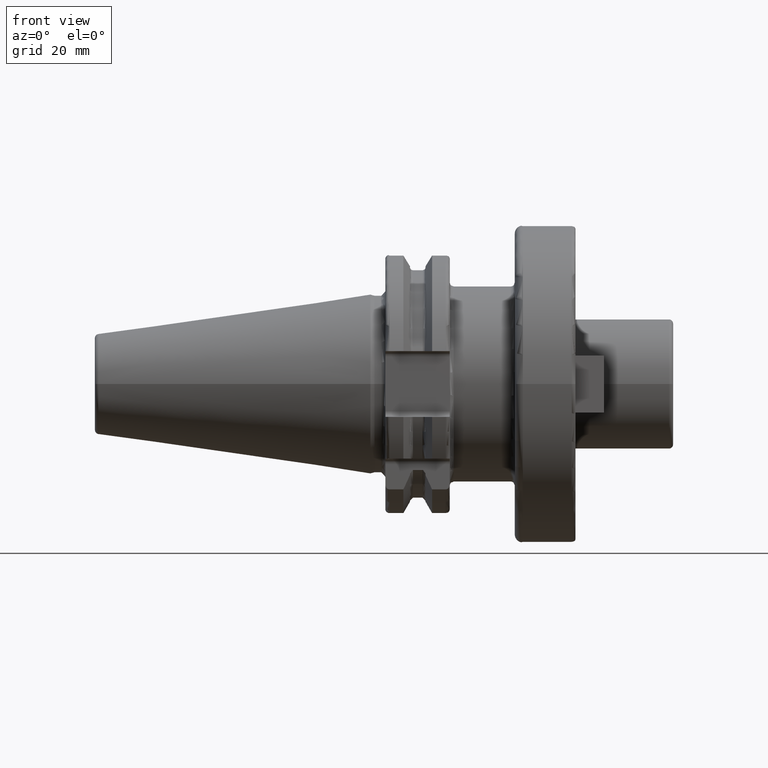
[diagram: clean part render]
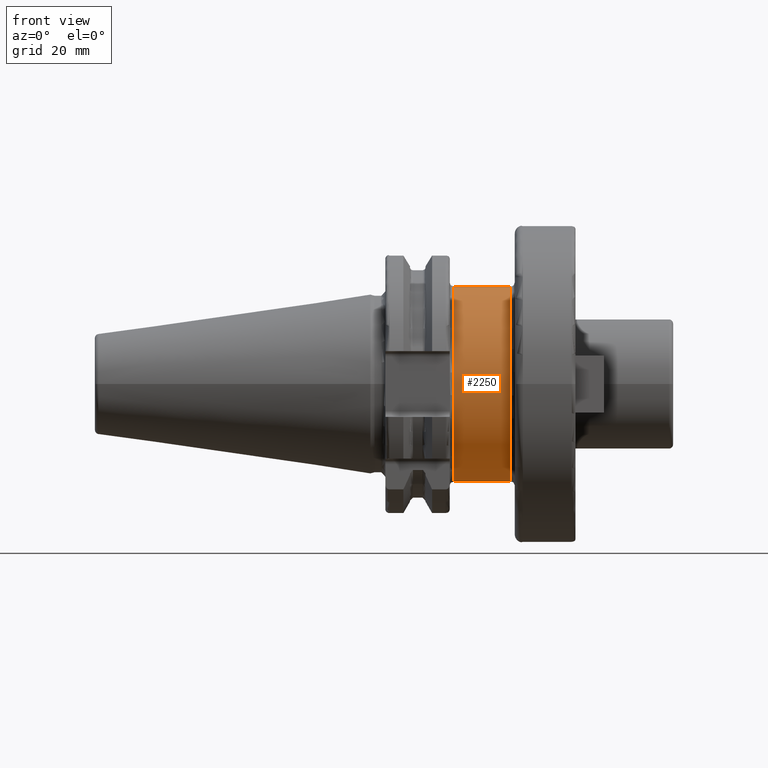
[diagram: same view with one face highlighted and labeled with its STEP entity id]
A machine part, front view. The second image highlights one B-rep face of the part: STEP entity #2250.
In plain terms, the highlighted cylindrical surface (partial cylindrical patch) has radius 24 mm, axis along (1, 0, 0).
Its self-contained STEP definition (entity closure, byte-faithful):
#299=DIRECTION('',(1.E0,0.E0,0.E0));
#300=VECTOR('',#299,1.4E1);
#301=CARTESIAN_POINT('',(2.005E1,2.255E1,-8.215686216014E0));
#302=LINE('',#301,#300);
#303=CARTESIAN_POINT('',(2.005E1,0.E0,0.E0));
#304=DIRECTION('',(-1.E0,0.E0,0.E0));
#305=DIRECTION('',(0.E0,9.395833333333E-1,-3.423202590006E-1));
#306=AXIS2_PLACEMENT_3D('',#303,#304,#305);
#308=DIRECTION('',(1.E0,0.E0,0.E0));
#309=VECTOR('',#308,1.4E1);
#310=CARTESIAN_POINT('',(2.005E1,2.255E1,8.215686216014E0));
#311=LINE('',#310,#309);
#334=CARTESIAN_POINT('',(3.405E1,0.E0,0.E0));
#335=DIRECTION('',(-1.E0,0.E0,0.E0));
#336=DIRECTION('',(0.E0,9.395833333333E-1,-3.423202590006E-1));
#337=AXIS2_PLACEMENT_3D('',#334,#335,#336);
#1836=CARTESIAN_POINT('',(2.005E1,2.255E1,8.215686216014E0));
#1837=CARTESIAN_POINT('',(3.405E1,2.255E1,8.215686216014E0));
#1838=VERTEX_POINT('',#1836);
#1839=VERTEX_POINT('',#1837);
#1840=CARTESIAN_POINT('',(2.005E1,2.255E1,-8.215686216014E0));
#1841=CARTESIAN_POINT('',(3.405E1,2.255E1,-8.215686216014E0));
#1842=VERTEX_POINT('',#1840);
#1843=VERTEX_POINT('',#1841);
#2238=CARTESIAN_POINT('',(1.63025E1,0.E0,0.E0));
#2239=DIRECTION('',(1.E0,0.E0,0.E0));
#2240=DIRECTION('',(0.E0,-1.E0,0.E0));
#2241=AXIS2_PLACEMENT_3D('',#2238,#2239,#2240);
#2242=CYLINDRICAL_SURFACE('',#2241,2.4E1);
#2244=ORIENTED_EDGE('',*,*,#2243,.F.);
#2245=ORIENTED_EDGE('',*,*,#2002,.F.);
#2246=ORIENTED_EDGE('',*,*,#2233,.T.);
#2247=ORIENTED_EDGE('',*,*,#2010,.T.);
#2248=EDGE_LOOP('',(#2244,#2245,#2246,#2247));
#2249=FACE_OUTER_BOUND('',#2248,.F.);
#2250=ADVANCED_FACE('',(#2249),#2242,.T.);
#307=CIRCLE('',#306,2.4E1);
#338=CIRCLE('',#337,2.4E1);
#2002=EDGE_CURVE('',#1842,#1843,#302,.T.);
#2010=EDGE_CURVE('',#1838,#1839,#311,.T.);
#2233=EDGE_CURVE('',#1842,#1838,#307,.T.);
#2243=EDGE_CURVE('',#1843,#1839,#338,.T.);